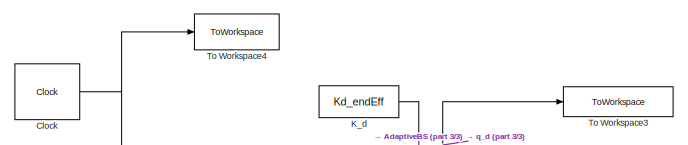
[diagram: root canvas - part 1/3, top left region]
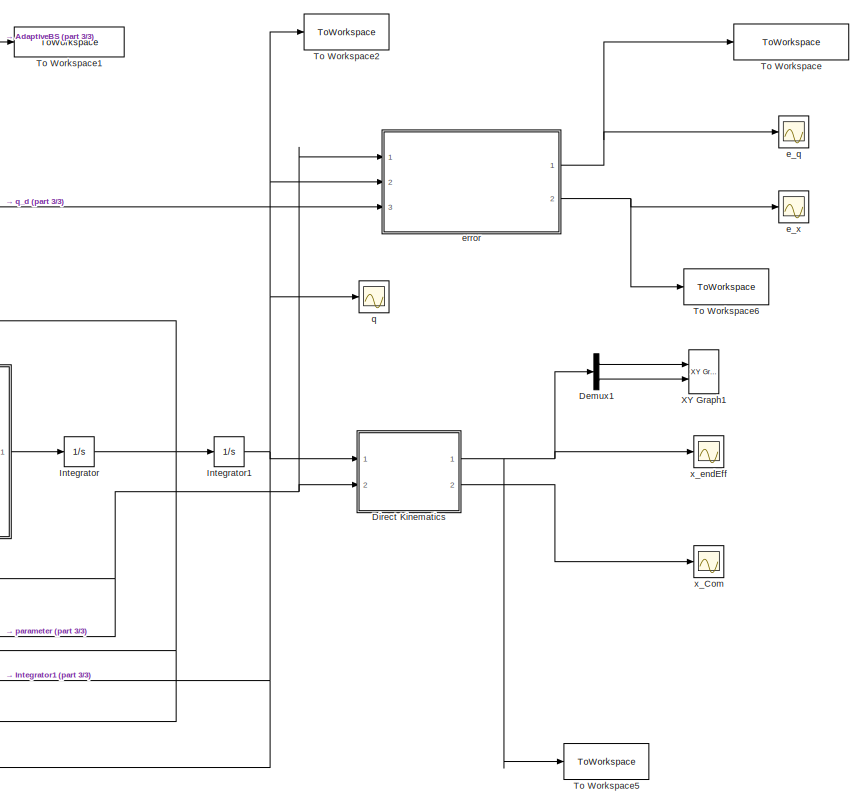
[diagram: root canvas - part 2/3, right side, full height]
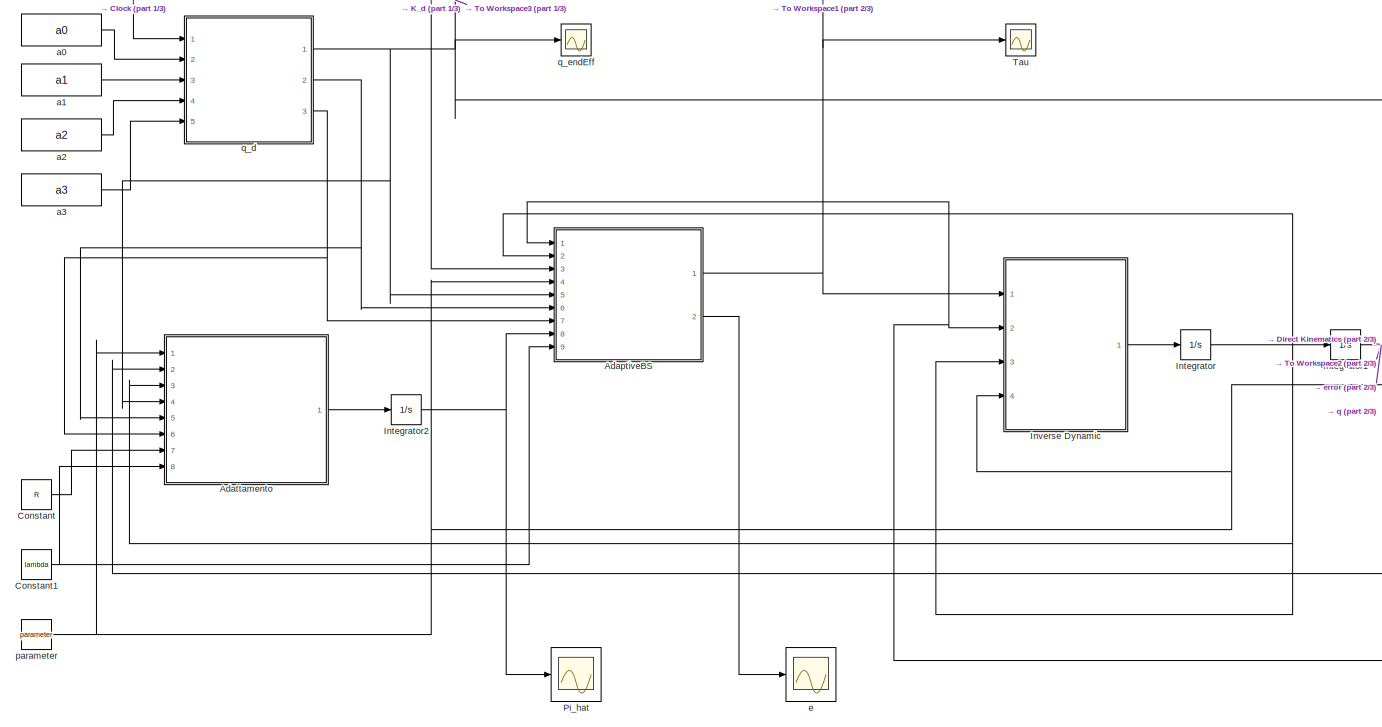
[diagram: root canvas - part 3/3, center side, full height]
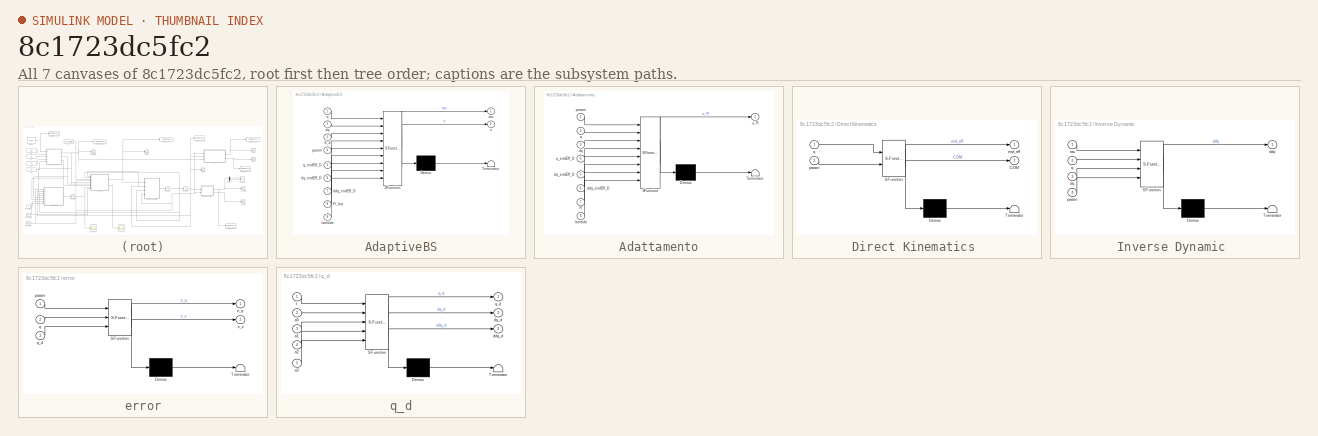
[diagram: thumbnail index - all 7 canvases of the model, root first then tree order]
MODEL slx_8c1723dc5fc2
KIND model
CONFIG AbsTol = 1e-6
CONFIG EnableMultiTasking = off
CONFIG FixedStep = auto
CONFIG MaxStep = 0.5
CONFIG MinStep = auto
CONFIG RelTol = 1e-3
CONFIG SampleTimeConstraint = Unconstrained
CONFIG Solver = ode23s
CONFIG SolverName = ode23s
CONFIG StartTime = 0.0
CONFIG StopTime = 25
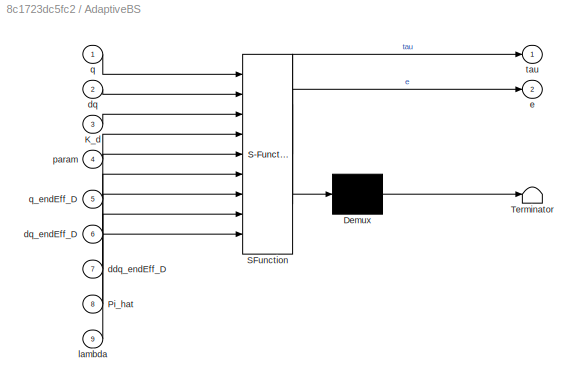
BLOCK [SubSystem] AdaptiveBS
  ErrorFcn = Stateflow.Translate.translate
  PermitHierarchicalResolution = ExplicitOnly
  Ports = [9, 2]
  RequestExecContextInheritance = off
  SFBlockType = MATLAB Function
  TreatAsAtomicUnit = on
BLOCK [Demux] AdaptiveBS/ Demux 
  Outputs = 1
  Ports = [1, 1]
BLOCK [S-Function] AdaptiveBS/ SFunction 
  EnableBusSupport = on
  FunctionName = sf_sfun
  PortCounts = [9 3]
  Ports = [9, 3]
  SFcnIsStateOwnerBlock = off
  SFunctionDeploymentMode = off
  Tag = Stateflow S-Function 3
BLOCK [Terminator] AdaptiveBS/ Terminator 
BLOCK [Inport] AdaptiveBS/K_d
  IconDisplay = Port number
  Port = 3
BLOCK [Inport] AdaptiveBS/Pi_hat
  IconDisplay = Port number
  Port = 8
BLOCK [Inport] AdaptiveBS/ddq_endEff_D
  IconDisplay = Port number
  Port = 7
BLOCK [Inport] AdaptiveBS/dq
  IconDisplay = Port number
  Port = 2
BLOCK [Inport] AdaptiveBS/dq_endEff_D
  IconDisplay = Port number
  Port = 6
BLOCK [Outport] AdaptiveBS/e
  IconDisplay = Port number
  Port = 2
BLOCK [Inport] AdaptiveBS/lambda
  IconDisplay = Port number
  Port = 9
BLOCK [Inport] AdaptiveBS/param
  IconDisplay = Port number
  Port = 4
BLOCK [Inport] AdaptiveBS/q
  IconDisplay = Port number
BLOCK [Inport] AdaptiveBS/q_endEff_D
  IconDisplay = Port number
  Port = 5
BLOCK [Outport] AdaptiveBS/tau
  IconDisplay = Port number
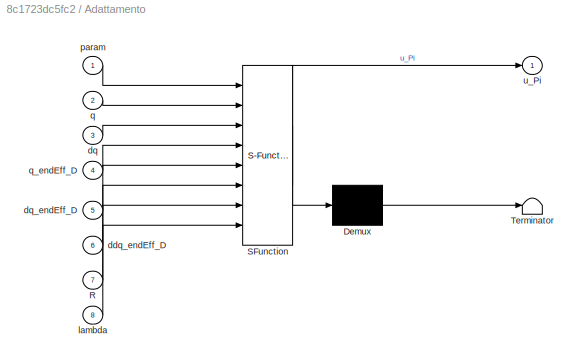
BLOCK [SubSystem] Adattamento
  ErrorFcn = Stateflow.Translate.translate
  PermitHierarchicalResolution = ExplicitOnly
  Ports = [8, 1]
  RequestExecContextInheritance = off
  SFBlockType = MATLAB Function
  TreatAsAtomicUnit = on
BLOCK [Demux] Adattamento/ Demux 
  Outputs = 1
  Ports = [1, 1]
BLOCK [S-Function] Adattamento/ SFunction 
  EnableBusSupport = on
  FunctionName = sf_sfun
  PortCounts = [8 2]
  Ports = [8, 2]
  SFcnIsStateOwnerBlock = off
  SFunctionDeploymentMode = off
  Tag = Stateflow S-Function 7
BLOCK [Terminator] Adattamento/ Terminator 
BLOCK [Inport] Adattamento/R
  IconDisplay = Port number
  Port = 7
BLOCK [Inport] Adattamento/ddq_endEff_D
  IconDisplay = Port number
  Port = 6
BLOCK [Inport] Adattamento/dq
  IconDisplay = Port number
  Port = 3
BLOCK [Inport] Adattamento/dq_endEff_D
  IconDisplay = Port number
  Port = 5
BLOCK [Inport] Adattamento/lambda
  IconDisplay = Port number
  Port = 8
BLOCK [Inport] Adattamento/param
  IconDisplay = Port number
BLOCK [Inport] Adattamento/q
  IconDisplay = Port number
  Port = 2
BLOCK [Inport] Adattamento/q_endEff_D
  IconDisplay = Port number
  Port = 4
BLOCK [Outport] Adattamento/u_Pi
  IconDisplay = Port number
  VectorParamsAs1DForOutWhenUnconnected = off
BLOCK [Clock] Clock
  DisplayTime = on
BLOCK [Constant] Constant
  Value = R
BLOCK [Constant] Constant1
  Value = lambda
BLOCK [Demux] Demux1
  DisplayOption = bar
  Outputs = 3
  Ports = [1, 3]
BLOCK [SubSystem] Direct Kinematics 
  ErrorFcn = Stateflow.Translate.translate
  PermitHierarchicalResolution = ExplicitOnly
  Ports = [2, 2]
  RequestExecContextInheritance = off
  SFBlockType = MATLAB Function
  TreatAsAtomicUnit = on
BLOCK [Demux] Direct Kinematics / Demux 
  Outputs = 1
  Ports = [1, 1]
BLOCK [S-Function] Direct Kinematics / SFunction 
  EnableBusSupport = on
  FunctionName = sf_sfun
  PortCounts = [2 3]
  Ports = [2, 3]
  SFcnIsStateOwnerBlock = off
  SFunctionDeploymentMode = off
  Tag = Stateflow S-Function 1
BLOCK [Terminator] Direct Kinematics / Terminator 
BLOCK [Outport] Direct Kinematics /COM
  IconDisplay = Port number
  Port = 2
  VectorParamsAs1DForOutWhenUnconnected = off
BLOCK [Outport] Direct Kinematics /end_eff
  IconDisplay = Port number
  VectorParamsAs1DForOutWhenUnconnected = off
BLOCK [Inport] Direct Kinematics /param
  IconDisplay = Port number
  Port = 2
BLOCK [Inport] Direct Kinematics /q
  IconDisplay = Port number
BLOCK [Integrator] Integrator
  InitialCondition = q0
  Ports = [1, 1]
BLOCK [Integrator] Integrator1
  InitialCondition = dq0
  Ports = [1, 1]
BLOCK [Integrator] Integrator2
  InitialCondition = Pi0
  Ports = [1, 1]
BLOCK [SubSystem] Inverse Dynamic 
  ErrorFcn = Stateflow.Translate.translate
  PermitHierarchicalResolution = ExplicitOnly
  Ports = [4, 1]
  RequestExecContextInheritance = off
  SFBlockType = MATLAB Function
  TreatAsAtomicUnit = on
BLOCK [Demux] Inverse Dynamic / Demux 
  Outputs = 1
  Ports = [1, 1]
BLOCK [S-Function] Inverse Dynamic / SFunction 
  EnableBusSupport = on
  FunctionName = sf_sfun
  PortCounts = [4 2]
  Ports = [4, 2]
  SFcnIsStateOwnerBlock = off
  SFunctionDeploymentMode = off
  Tag = Stateflow S-Function 2
BLOCK [Terminator] Inverse Dynamic / Terminator 
BLOCK [Outport] Inverse Dynamic /ddq
  IconDisplay = Port number
  VectorParamsAs1DForOutWhenUnconnected = off
BLOCK [Inport] Inverse Dynamic /dq
  IconDisplay = Port number
  Port = 3
BLOCK [Inport] Inverse Dynamic /param
  IconDisplay = Port number
  Port = 4
BLOCK [Inport] Inverse Dynamic /q
  IconDisplay = Port number
  Port = 2
BLOCK [Inport] Inverse Dynamic /tau
  IconDisplay = Port number
BLOCK [Constant] K_d
  Value = Kd_endEff
BLOCK [Scope] Pi_hat
  Floating = off
  NumInputPorts = 1
  Ports = [1]
  ScopeSpecificationString = Simulink.scopes.TimeScopeBlockCfg('CurrentConfiguration', extmgr.ConfigurationSet(extmgr.Configuration('Core','General UI',true),extmgr.Configuration('Core','Source UI',true),extmgr.Configuration('Sources','WiredSimulink',true,'DataLoggingVariableName','ScopeData1'),extmgr.Configuration('Visuals','Time Domain',true,'SerializedDisplays',{struct('MinYLimReal','-29074.07577','MaxYLimReal','21124.0869...<+1487ch>
BLOCK [Scope] Tau
  Floating = off
  NumInputPorts = 1
  Ports = [1]
  ScopeSpecificationString = Simulink.scopes.TimeScopeBlockCfg('CurrentConfiguration', extmgr.ConfigurationSet(extmgr.Configuration('Core','General UI',true),extmgr.Configuration('Core','Source UI',true),extmgr.Configuration('Sources','WiredSimulink',true,'DataLoggingVariableName','ScopeData1'),extmgr.Configuration('Visuals','Time Domain',true,'SerializedDisplays',{struct('MinYLimReal','-4169.90955','MaxYLimReal','31935.7201'...<+1566ch>
BLOCK [ToWorkspace] To Workspace
  FixptAsFi = on
  MaxDataPoints = inf
  Ports = [1]
  SampleTime = -1
  Save2DSignal = 2-D array (concatenate along first dimension)
  SaveFormat = Structure With Time
  VariableName = e_joint
BLOCK [ToWorkspace] To Workspace1
  FixptAsFi = on
  MaxDataPoints = inf
  Ports = [1]
  SampleTime = -1
  SaveFormat = Structure With Time
  VariableName = tau
BLOCK [ToWorkspace] To Workspace2
  FixptAsFi = on
  MaxDataPoints = inf
  Ports = [1]
  SampleTime = -1
  SaveFormat = Structure With Time
  VariableName = q
BLOCK [ToWorkspace] To Workspace3
  FixptAsFi = on
  MaxDataPoints = inf
  Ports = [1]
  SampleTime = -1
  SaveFormat = Structure With Time
  VariableName = qd
BLOCK [ToWorkspace] To Workspace4
  FixptAsFi = on
  MaxDataPoints = inf
  Ports = [1]
  SampleTime = -1
  SaveFormat = Structure With Time
  VariableName = t_sim
BLOCK [ToWorkspace] To Workspace5
  FixptAsFi = on
  MaxDataPoints = inf
  Ports = [1]
  SampleTime = -1
  SaveFormat = Structure With Time
  VariableName = x
BLOCK [ToWorkspace] To Workspace6
  FixptAsFi = on
  MaxDataPoints = inf
  Ports = [1]
  SampleTime = -1
  SaveFormat = Structure With Time
  VariableName = e_x
BLOCK [Reference] XY Graph1  REF=simulink/Sinks/XY Graph
  Ports = [2]
  SourceBlock = simulink/Sinks/XY Graph
  SourceProductBaseCode = SL
  SourceProductName = Simulink
  SourceType = XY scope.
BLOCK [Constant] a0
  Value = a0
BLOCK [Constant] a1
  Value = a1
BLOCK [Constant] a2
  Value = a2
BLOCK [Constant] a3
  Value = a3
BLOCK [Scope] e
  Floating = off
  NumInputPorts = 1
  Ports = [1]
  ScopeSpecificationString = Simulink.scopes.TimeScopeBlockCfg('CurrentConfiguration', extmgr.ConfigurationSet(extmgr.Configuration('Core','General UI',true),extmgr.Configuration('Core','Source UI',true),extmgr.Configuration('Sources','WiredSimulink',true,'DataLoggingVariableName','ScopeData2'),extmgr.Configuration('Visuals','Time Domain',true,'SerializedDisplays',{struct('MinYLimReal','-0.36921','MaxYLimReal','0.19497','YLab...<+1480ch>
BLOCK [Scope] e_q
  Floating = off
  NumInputPorts = 1
  Ports = [1]
  ScopeSpecificationString = Simulink.scopes.TimeScopeBlockCfg('CurrentConfiguration', extmgr.ConfigurationSet(extmgr.Configuration('Core','General UI',true),extmgr.Configuration('Core','Source UI',true),extmgr.Configuration('Sources','WiredSimulink',true,'DataLoggingVariableName','ScopeData3'),extmgr.Configuration('Visuals','Time Domain',true,'SerializedDisplays',{struct('MinYLimReal','-443263.72368','MaxYLimReal','63000.632...<+1572ch>
BLOCK [Scope] e_x
  Floating = off
  NumInputPorts = 1
  Ports = [1]
  ScopeSpecificationString = Simulink.scopes.TimeScopeBlockCfg('CurrentConfiguration', extmgr.ConfigurationSet(extmgr.Configuration('Core','General UI',true),extmgr.Configuration('Core','Source UI',true),extmgr.Configuration('Sources','WiredSimulink',true,'DataLoggingVariableName','ScopeData4'),extmgr.Configuration('Visuals','Time Domain',true,'SerializedDisplays',{struct('MinYLimReal','-1.5814','MaxYLimReal','12.69502','YLab...<+1472ch>
BLOCK [SubSystem] error
  ErrorFcn = Stateflow.Translate.translate
  PermitHierarchicalResolution = ExplicitOnly
  Ports = [3, 2]
  RequestExecContextInheritance = off
  SFBlockType = MATLAB Function
  TreatAsAtomicUnit = on
BLOCK [Demux] error/ Demux 
  Outputs = 1
  Ports = [1, 1]
BLOCK [S-Function] error/ SFunction 
  EnableBusSupport = on
  FunctionName = sf_sfun
  PortCounts = [3 3]
  Ports = [3, 3]
  SFcnIsStateOwnerBlock = off
  SFunctionDeploymentMode = off
  Tag = Stateflow S-Function 5
BLOCK [Terminator] error/ Terminator 
BLOCK [Outport] error/e_q
  IconDisplay = Port number
  VectorParamsAs1DForOutWhenUnconnected = off
BLOCK [Outport] error/e_x
  IconDisplay = Port number
  Port = 2
  VectorParamsAs1DForOutWhenUnconnected = off
BLOCK [Inport] error/param
  IconDisplay = Port number
BLOCK [Inport] error/q
  IconDisplay = Port number
  Port = 2
BLOCK [Inport] error/q_d
  IconDisplay = Port number
  Port = 3
BLOCK [Constant] parameter 
  Value = parameter
BLOCK [Scope] q
  Floating = off
  NumInputPorts = 1
  Ports = [1]
  ScopeSpecificationString = Simulink.scopes.TimeScopeBlockCfg('CurrentConfiguration', extmgr.ConfigurationSet(extmgr.Configuration('Core','General UI',true),extmgr.Configuration('Core','Source UI',true),extmgr.Configuration('Sources','WiredSimulink',true,'DataLoggingVariableName','ScopeData5'),extmgr.Configuration('Visuals','Time Domain',true,'SerializedDisplays',{struct('MinYLimReal','-0.375','MaxYLimReal','3.37503','YLabel...<+1453ch>
BLOCK [SubSystem] q_d
  ErrorFcn = Stateflow.Translate.translate
  PermitHierarchicalResolution = ExplicitOnly
  Ports = [5, 3]
  RequestExecContextInheritance = off
  SFBlockType = MATLAB Function
  TreatAsAtomicUnit = on
BLOCK [Demux] q_d/ Demux 
  Outputs = 1
  Ports = [1, 1]
BLOCK [S-Function] q_d/ SFunction 
  EnableBusSupport = on
  FunctionName = sf_sfun
  PortCounts = [5 4]
  Ports = [5, 4]
  SFcnIsStateOwnerBlock = off
  SFunctionDeploymentMode = off
  Tag = Stateflow S-Function 6
BLOCK [Terminator] q_d/ Terminator 
BLOCK [Inport] q_d/a0
  IconDisplay = Port number
  Port = 2
BLOCK [Inport] q_d/a1
  IconDisplay = Port number
  Port = 3
BLOCK [Inport] q_d/a2
  IconDisplay = Port number
  Port = 4
BLOCK [Inport] q_d/a3
  IconDisplay = Port number
  Port = 5
BLOCK [Outport] q_d/ddq_d
  IconDisplay = Port number
  Port = 3
  VectorParamsAs1DForOutWhenUnconnected = off
BLOCK [Outport] q_d/dq_d
  IconDisplay = Port number
  Port = 2
  VectorParamsAs1DForOutWhenUnconnected = off
BLOCK [Outport] q_d/q_d
  IconDisplay = Port number
  VectorParamsAs1DForOutWhenUnconnected = off
BLOCK [Inport] q_d/t
  IconDisplay = Port number
BLOCK [Scope] q_endEff
  Floating = off
  NumInputPorts = 1
  Ports = [1]
  ScopeSpecificationString = Simulink.scopes.TimeScopeBlockCfg('CurrentConfiguration', extmgr.ConfigurationSet(extmgr.Configuration('Core','General UI',true),extmgr.Configuration('Core','Source UI',true),extmgr.Configuration('Sources','WiredSimulink',true,'DataLoggingVariableName','ScopeData6'),extmgr.Configuration('Visuals','Time Domain',true,'SerializedDisplays',{struct('MinYLimReal','2.9961','MaxYLimReal','3.00217','YLabel...<+1496ch>
BLOCK [Scope] x_Com
  Floating = off
  NumInputPorts = 1
  Ports = [1]
  ScopeSpecificationString = Simulink.scopes.TimeScopeBlockCfg('CurrentConfiguration', extmgr.ConfigurationSet(extmgr.Configuration('Core','General UI',true),extmgr.Configuration('Core','Source UI',true),extmgr.Configuration('Sources','WiredSimulink',true,'DataLoggingVariableName','ScopeData7'),extmgr.Configuration('Visuals','Time Domain',true,'SerializedDisplays',{struct('MinYLimReal','-0.01373','MaxYLimReal','0.12358','YLab...<+1491ch>
BLOCK [Scope] x_endEff
  Floating = off
  NumInputPorts = 1
  Ports = [1]
  ScopeSpecificationString = Simulink.scopes.TimeScopeBlockCfg('CurrentConfiguration', extmgr.ConfigurationSet(extmgr.Configuration('Core','General UI',true),extmgr.Configuration('Core','Source UI',true),extmgr.Configuration('Sources','WiredSimulink',true),extmgr.Configuration('Visuals','Time Domain',true,'SerializedDisplays',{struct('MinYLimReal','-0.98123','MaxYLimReal','8.83109','YLabelReal','','MinYLimMag','0.00000','MaxY...<+1420ch>
NET AdaptiveBS:1 -> Inverse Dynamic :1, Tau:1, To Workspace1:1
LINE AdaptiveBS:2 -> e:1
LINE Adattamento:1 -> Integrator2:1
NET Clock:1 -> To Workspace4:1, q_d:1
NET Constant1:1 -> AdaptiveBS:9, Adattamento:8
LINE Constant:1 -> Adattamento:7
LINE Demux1:1 -> XY Graph1:1
LINE Demux1:3 -> XY Graph1:2
NET Direct Kinematics :1 -> Demux1:1, To Workspace5:1, x_endEff:1
LINE Direct Kinematics :2 -> x_Com:1
NET Integrator1:1 -> AdaptiveBS:1, Adattamento:2, Direct Kinematics :1, Inverse Dynamic :2, To Workspace2:1, error:2, q:1
NET Integrator2:1 -> AdaptiveBS:8, Pi_hat:1
NET Integrator:1 -> AdaptiveBS:2, Adattamento:3, Integrator1:1, Inverse Dynamic :3
LINE Inverse Dynamic :1 -> Integrator:1
LINE K_d:1 -> AdaptiveBS:3
LINE a0:1 -> q_d:2
LINE a1:1 -> q_d:3
LINE a2:1 -> q_d:4
LINE a3:1 -> q_d:5
NET error:1 -> To Workspace:1, e_q:1
NET error:2 -> To Workspace6:1, e_x:1
NET parameter :1 -> AdaptiveBS:4, Adattamento:1, Direct Kinematics :2, Inverse Dynamic :4, error:1
NET q_d:1 -> AdaptiveBS:5, Adattamento:4, To Workspace3:1, error:3, q_endEff:1
NET q_d:2 -> AdaptiveBS:6, Adattamento:5
NET q_d:3 -> AdaptiveBS:7, Adattamento:6
note: NET lines group one-source signal fan-out (src -> all destinations, sorted); 1:1 wires keep LINE
CHART Direct Kinematics
 states=1 transitions=1
  STATE_LABEL 'eML_blk_kernel()'
  STATE_LABEL 'SCRIPT:\nfunction [end_eff, COM] = DirectK(q,param)\n\n    [Pcom, Etip, ~, ~, ~, ~, ~, ~, ~] =  forwardKinematics(param, q);\n    \n    end_eff = Etip(1:3, 4);\n    COM = Pcom;\n    \nend'
CHART Inverse Dynamic
 states=1 transitions=1
  STATE_LABEL 'eML_blk_kernel()'
  STATE_LABEL 'SCRIPT:\nfunction ddq = inverseDynamic(tau, q, dq, param)\n\n    B = B_fun(param, q);\n    C = C_fun(param, q, dq);\n    G = G_fun(param, q);\n    \n    ddq = pinv(B)*(tau - G - C*dq);\n\nend\n'
CHART AdaptiveBS states=1 transitions=1
  STATE_LABEL 'eML_blk_kernel()'
  STATE_LABEL 'SCRIPT:\nfunction [tau, e]  = x_now(q, dq, K_d, param, q_endEff_D, dq_endEff_D, ddq_endEff_D, Pi_hat, lambda)\n\n    Y = Y_fun(param, q, dq, ddq_endEff_D);\n    \n    [Pcom, Etip] = forwardKinematics(param, q_endEff_D);\n    x_endEff_D = Etip(1:3, 4);\n    [Pcom, Etip] = forwardKinematics(param, q);\n    x = Etip(1:3, 4);\n    J = JacobianEndEff(param, q);\n    dx_endEff_D = J * dq_endEff_D;\n    dx = J * dq...<+147ch>'
CHART error states=1 transitions=1
  STATE_LABEL 'eML_blk_kernel()'
  STATE_LABEL 'SCRIPT:\nfunction [e_q, e_x]  = error(param, q, q_d)\n    \n\n    [~, Etip, ~, ~, ~, ~, ~, ~, ~] =  forwardKinematics(param, q);\n    [~, Etip_d, ~, ~, ~, ~, ~, ~, ~] =  forwardKinematics(param, q_d);  \n\n    e_x = Etip_d(1:3,4) - Etip(1:3,4);\n\n    e_q = q_d - q;\n    \nend'
CHART q_d states=1 transitions=1
  STATE_LABEL 'eML_blk_kernel()'
  STATE_LABEL 'SCRIPT:\nfunction [q_d, dq_d, ddq_d] = desiderable_q(t, a0, a1, a2, a3)\n\n    [q_d, dq_d, ddq_d] = vettoreq(a0, a1, a2, a3, t);\n    \nend\n'
CHART Adattamento states=1 transitions=1
  STATE_LABEL 'eML_blk_kernel()'
  STATE_LABEL 'SCRIPT:\nfunction u_Pi = adattamento(param, q, dq, q_endEff_D, dq_endEff_D, ddq_endEff_D, R, lambda)\n\n    Y = Y_fun(param, q, dq, ddq_endEff_D);\n\n    [Pcom, Etip] = forwardKinematics(param, q_endEff_D);\n    x_endEff_D = Etip(1:3,4);\n    [Pcom, Etip] = forwardKinematics(param, q);\n    x = Etip(1:3,4);\n    J = JacobianEndEff(param, q);\n    dx_endEff_D = J * dq_endEff_D;\n    dx = J * dq;\n\n    e = x_en...<+114ch>'
